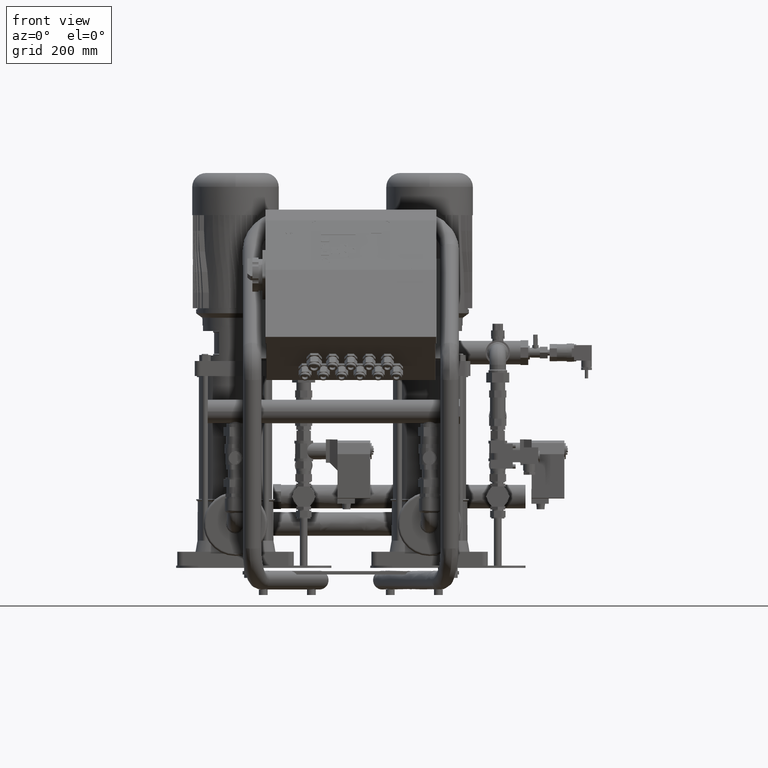
[diagram: clean part render]
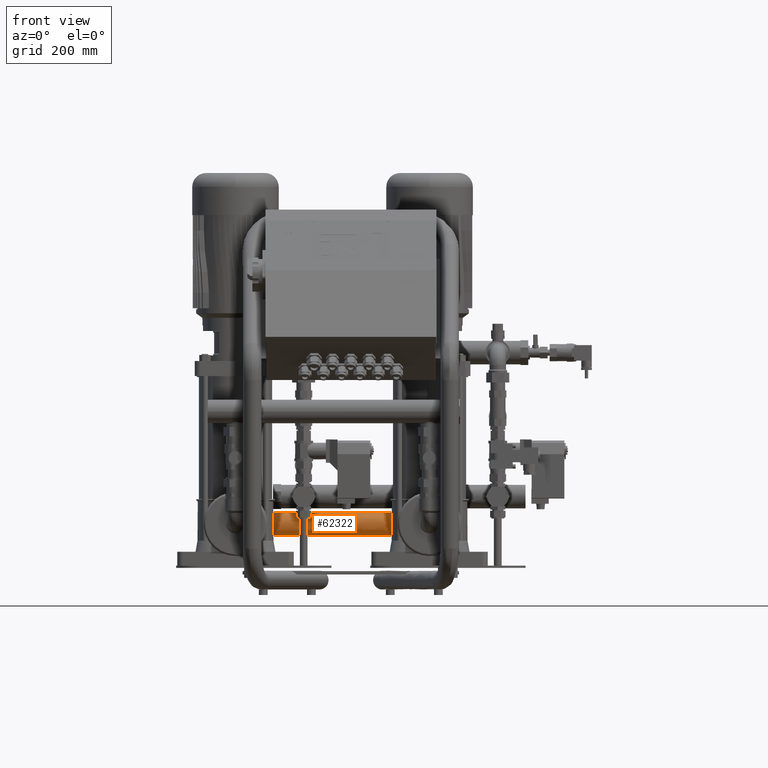
[diagram: same view with one face highlighted and labeled with its STEP entity id]
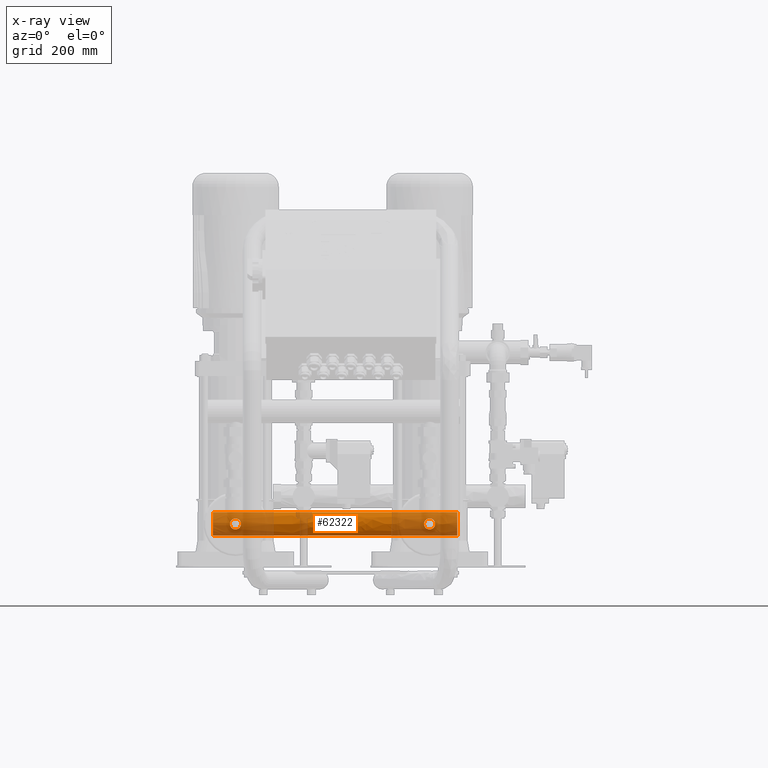
[diagram: x-ray of the same camera — body ghosted, the highlighted face saturated]
A machine part, front view. The second image highlights one B-rep face of the part: STEP entity #62322.
The next image is the same camera in x-ray: the body ghosted, the highlighted face saturated — about 54% of this face is hidden behind the body in this view.
In plain terms, the highlighted face is a freeform B-spline surface patch.
Its self-contained STEP definition (entity closure, byte-faithful):
#60997=CARTESIAN_POINT('',(192.000000000000030,302.000000000000060,149.199999999999990));
#60998=VERTEX_POINT('',#60997);
#60999=CARTESIAN_POINT('',(-248.999999999999970,302.000000000000060,149.199999999999990));
#61000=VERTEX_POINT('',#60999);
#61001=CARTESIAN_POINT('',(192.000000000000030,302.000000000000060,149.199999999999990));
#61002=DIRECTION('',(-1.0,0.0,0.0));
#61003=VECTOR('',#61002,441.0);
#61004=LINE('',#61001,#61003);
#61005=EDGE_CURVE('',#60998,#61000,#61004,.T.);
#61007=CARTESIAN_POINT('',(192.000000000000030,302.000000000000060,106.800000000000010));
#61008=VERTEX_POINT('',#61007);
#61016=CARTESIAN_POINT('',(-248.999999999999970,302.000000000000060,106.800000000000010));
#61017=VERTEX_POINT('',#61016);
#61018=CARTESIAN_POINT('',(192.000000000000030,302.000000000000060,106.800000000000010));
#61019=DIRECTION('',(-1.0,0.0,0.0));
#61020=VECTOR('',#61019,441.0);
#61021=LINE('',#61018,#61020);
#61022=EDGE_CURVE('',#61008,#61017,#61021,.T.);
#61062=CARTESIAN_POINT('',(142.0,283.306685687123380,118.0));
#61063=VERTEX_POINT('',#61062);
#61079=CARTESIAN_POINT('',(142.000000000000140,283.306685687123380,138.0));
#61080=VERTEX_POINT('',#61079);
#61087=CARTESIAN_POINT('',(142.000000000000030,283.306685687123380,138.0));
#61088=CARTESIAN_POINT('',(140.720560186007700,283.306685687123380,138.0));
#61089=CARTESIAN_POINT('',(139.373084570083650,283.161358473429910,137.740136846398630));
#61090=CARTESIAN_POINT('',(136.917228477885170,282.665361959589750,136.714150652767440));
#61091=CARTESIAN_POINT('',(135.806584471090930,282.324519280027180,135.948720094821850));
#61092=CARTESIAN_POINT('',(134.053117178519220,281.704140556238090,134.195252802250140));
#61093=CARTESIAN_POINT('',(133.286323823155130,281.380686168950040,133.083964854864400));
#61094=CARTESIAN_POINT('',(132.259254125880060,280.926080648252480,130.625400019420970));
#61095=CARTESIAN_POINT('',(132.000000000000030,280.800000000000070,129.276761440441250));
#61096=CARTESIAN_POINT('',(132.000000000000030,280.800000000000070,126.723238559558750));
#61097=CARTESIAN_POINT('',(132.259254125880060,280.926080648252480,125.374599980579030));
#61098=CARTESIAN_POINT('',(133.286323823155130,281.380686168950040,122.916035145135600));
#61099=CARTESIAN_POINT('',(134.053117178519220,281.704140556238090,121.804747197749860));
#61100=CARTESIAN_POINT('',(135.806584471090930,282.324519280027180,120.051279905178180));
#61101=CARTESIAN_POINT('',(136.917228477885060,282.665361959589750,119.285849347232610));
#61102=CARTESIAN_POINT('',(139.373084570083530,283.161358473429910,118.259863153601460));
#61103=CARTESIAN_POINT('',(140.720560186007700,283.306685687123380,118.0));
#61104=CARTESIAN_POINT('',(142.0,283.306685687123380,118.0));
#61105=B_SPLINE_CURVE_WITH_KNOTS('',3,(#61087,#61088,#61089,#61090,#61091,#61092,#61093,#61094,#61095,#61096,#61097,#61098,#61099,#61100,#61101,#61102,#61103,#61104),.UNSPECIFIED.,.F.,.U.,(4,2,2,2,2,2,2,2,4),(0.0,0.383831944197687,0.767663888395374,1.150692320527747,1.533720752660120,1.916749184792493,2.299777616924865,2.683609561122553,3.067441505320240),.UNSPECIFIED.);
#61106=EDGE_CURVE('',#61080,#61063,#61105,.T.);
#61139=CARTESIAN_POINT('',(-207.999999999999940,283.306685687123380,118.0));
#61140=VERTEX_POINT('',#61139);
#61156=CARTESIAN_POINT('',(-207.999999999999970,283.306685687123380,138.0));
#61157=VERTEX_POINT('',#61156);
#61164=CARTESIAN_POINT('',(-207.999999999999970,283.306685687123380,138.0));
#61165=CARTESIAN_POINT('',(-209.279439813992240,283.306685687123380,138.0));
#61166=CARTESIAN_POINT('',(-210.626915429916350,283.161358473429970,137.740136846398630));
#61167=CARTESIAN_POINT('',(-213.082771522114880,282.665361959589750,136.714150652767440));
#61168=CARTESIAN_POINT('',(-214.193415528909070,282.324519280027180,135.948720094821850));
#61169=CARTESIAN_POINT('',(-215.946882821480780,281.704140556238090,134.195252802250140));
#61170=CARTESIAN_POINT('',(-216.713676176844870,281.380686168950040,133.083964854864400));
#61171=CARTESIAN_POINT('',(-217.740745874119880,280.926080648252480,130.625400019420970));
#61172=CARTESIAN_POINT('',(-217.999999999999970,280.800000000000070,129.276761440441250));
#61173=CARTESIAN_POINT('',(-217.999999999999970,280.800000000000070,126.723238559558810));
#61174=CARTESIAN_POINT('',(-217.740745874119880,280.926080648252480,125.374599980579090));
#61175=CARTESIAN_POINT('',(-216.713676176844870,281.380686168950040,122.916035145135620));
#61176=CARTESIAN_POINT('',(-215.946882821480780,281.704140556238090,121.804747197749890));
#61177=CARTESIAN_POINT('',(-214.193415528909070,282.324519280027180,120.051279905178180));
#61178=CARTESIAN_POINT('',(-213.082771522114880,282.665361959589750,119.285849347232580));
#61179=CARTESIAN_POINT('',(-210.626915429916350,283.161358473429970,118.259863153601400));
#61180=CARTESIAN_POINT('',(-209.279439813992240,283.306685687123380,118.0));
#61181=CARTESIAN_POINT('',(-207.999999999999940,283.306685687123380,118.0));
#61182=B_SPLINE_CURVE_WITH_KNOTS('',3,(#61164,#61165,#61166,#61167,#61168,#61169,#61170,#61171,#61172,#61173,#61174,#61175,#61176,#61177,#61178,#61179,#61180,#61181),.UNSPECIFIED.,.F.,.U.,(4,2,2,2,2,2,2,2,4),(0.0,0.383831944197688,0.767663888395376,1.150692320527748,1.533720752660121,1.916749184792493,2.299777616924865,2.683609561122553,3.067441505320241),.UNSPECIFIED.);
#61183=EDGE_CURVE('',#61157,#61140,#61182,.T.);
#61907=CARTESIAN_POINT('',(-207.999999999999940,283.306685687123380,118.0));
#61908=CARTESIAN_POINT('',(-206.720560186007650,283.306685687123380,118.0));
#61909=CARTESIAN_POINT('',(-205.373084570083590,283.161358473429970,118.259863153601400));
#61910=CARTESIAN_POINT('',(-202.917228477885000,282.665361959589750,119.285849347232580));
#61911=CARTESIAN_POINT('',(-201.806584471090820,282.324519280027180,120.051279905178180));
#61912=CARTESIAN_POINT('',(-200.053117178519160,281.704140556238090,121.804747197749890));
#61913=CARTESIAN_POINT('',(-199.286323823155020,281.380686168950040,122.916035145135620));
#61914=CARTESIAN_POINT('',(-198.259254125880010,280.926080648252480,125.374599980579090));
#61915=CARTESIAN_POINT('',(-197.999999999999970,280.800000000000070,126.723238559558810));
#61916=CARTESIAN_POINT('',(-197.999999999999970,280.800000000000070,129.276761440441250));
#61917=CARTESIAN_POINT('',(-198.259254125880010,280.926080648252480,130.625400019420970));
#61918=CARTESIAN_POINT('',(-199.286323823155020,281.380686168950040,133.083964854864400));
#61919=CARTESIAN_POINT('',(-200.053117178519160,281.704140556238090,134.195252802250140));
#61920=CARTESIAN_POINT('',(-201.806584471090820,282.324519280027180,135.948720094821850));
#61921=CARTESIAN_POINT('',(-202.917228477885000,282.665361959589750,136.714150652767440));
#61922=CARTESIAN_POINT('',(-205.373084570083530,283.161358473429970,137.740136846398630));
#61923=CARTESIAN_POINT('',(-206.720560186007650,283.306685687123380,138.0));
#61924=CARTESIAN_POINT('',(-207.999999999999970,283.306685687123380,138.0));
#61925=B_SPLINE_CURVE_WITH_KNOTS('',3,(#61907,#61908,#61909,#61910,#61911,#61912,#61913,#61914,#61915,#61916,#61917,#61918,#61919,#61920,#61921,#61922,#61923,#61924),.UNSPECIFIED.,.F.,.U.,(4,2,2,2,2,2,2,2,4),(3.067441505320241,3.451273449517929,3.835105393715617,4.218133825847990,4.601162257980362,4.984190690112735,5.367219122245107,5.751051066442795,6.134883010640484),.UNSPECIFIED.);
#61926=EDGE_CURVE('',#61140,#61157,#61925,.T.);
#61960=CARTESIAN_POINT('',(142.0,283.306685687123380,118.0));
#61961=CARTESIAN_POINT('',(143.279439813992300,283.306685687123380,118.0));
#61962=CARTESIAN_POINT('',(144.626915429916350,283.161358473429970,118.259863153601400));
#61963=CARTESIAN_POINT('',(147.082771522114940,282.665361959589750,119.285849347232580));
#61964=CARTESIAN_POINT('',(148.193415528909130,282.324519280027180,120.051279905178180));
#61965=CARTESIAN_POINT('',(149.946882821480840,281.704140556238090,121.804747197749860));
#61966=CARTESIAN_POINT('',(150.713676176844980,281.380686168950040,122.916035145135600));
#61967=CARTESIAN_POINT('',(151.740745874119990,280.926080648252480,125.374599980579030));
#61968=CARTESIAN_POINT('',(152.000000000000030,280.800000000000070,126.723238559558750));
#61969=CARTESIAN_POINT('',(152.000000000000030,280.800000000000070,129.276761440441250));
#61970=CARTESIAN_POINT('',(151.740745874119990,280.926080648252480,130.625400019420970));
#61971=CARTESIAN_POINT('',(150.713676176844980,281.380686168950040,133.083964854864400));
#61972=CARTESIAN_POINT('',(149.946882821480840,281.704140556238090,134.195252802250140));
#61973=CARTESIAN_POINT('',(148.193415528909130,282.324519280027180,135.948720094821850));
#61974=CARTESIAN_POINT('',(147.082771522114880,282.665361959589750,136.714150652767440));
#61975=CARTESIAN_POINT('',(144.626915429916410,283.161358473429910,137.740136846398630));
#61976=CARTESIAN_POINT('',(143.279439813992350,283.306685687123380,138.0));
#61977=CARTESIAN_POINT('',(142.000000000000030,283.306685687123380,138.0));
#61978=B_SPLINE_CURVE_WITH_KNOTS('',3,(#61960,#61961,#61962,#61963,#61964,#61965,#61966,#61967,#61968,#61969,#61970,#61971,#61972,#61973,#61974,#61975,#61976,#61977),.UNSPECIFIED.,.F.,.U.,(4,2,2,2,2,2,2,2,4),(3.067441505320240,3.451273449517927,3.835105393715614,4.218133825847986,4.601162257980359,4.984190690112732,5.367219122245105,5.751051066442792,6.134883010640479),.UNSPECIFIED.);
#61979=EDGE_CURVE('',#61063,#61080,#61978,.T.);
#62058=CARTESIAN_POINT('',(-248.999999999999970,302.000000000000060,128.0));
#62059=DIRECTION('',(1.0,0.0,0.0));
#62060=DIRECTION('',(0.0,0.0,1.0));
#62061=AXIS2_PLACEMENT_3D('',#62058,#62059,#62060);
#62062=CIRCLE('',#62061,21.200000000000003);
#62063=EDGE_CURVE('',#61000,#61017,#62062,.T.);
#62276=CARTESIAN_POINT('',(-248.999999999999970,302.000000000000060,106.800000000000000));
#62277=CARTESIAN_POINT('',(192.000000000000030,302.000000000000060,106.800000000000000));
#62278=CARTESIAN_POINT('',(-248.999999999999970,280.800000000000070,106.800000000000000));
#62279=CARTESIAN_POINT('',(192.0,280.800000000000070,106.800000000000000));
#62280=CARTESIAN_POINT('',(-248.999999999999970,280.800000000000070,128.0));
#62281=CARTESIAN_POINT('',(192.000000000000030,280.800000000000070,128.0));
#62282=CARTESIAN_POINT('',(-248.999999999999970,280.800000000000070,149.199999999999990));
#62283=CARTESIAN_POINT('',(192.0,280.800000000000070,149.199999999999990));
#62284=CARTESIAN_POINT('',(-248.999999999999970,302.000000000000060,149.199999999999990));
#62285=CARTESIAN_POINT('',(192.000000000000030,302.000000000000060,149.199999999999990));
#62286=CARTESIAN_POINT('',(-248.999999999999970,323.200000000000050,149.199999999999990));
#62287=CARTESIAN_POINT('',(192.0,323.200000000000050,149.199999999999990));
#62288=CARTESIAN_POINT('',(-248.999999999999970,323.200000000000050,128.0));
#62289=CARTESIAN_POINT('',(192.000000000000030,323.200000000000050,128.0));
#62290=CARTESIAN_POINT('',(-248.999999999999970,323.200000000000050,106.800000000000000));
#62291=CARTESIAN_POINT('',(192.0,323.200000000000050,106.800000000000000));
#62292=CARTESIAN_POINT('',(-248.999999999999970,302.000000000000060,106.800000000000000));
#62293=CARTESIAN_POINT('',(192.000000000000030,302.000000000000060,106.800000000000000));
#62301=(BOUNDED_SURFACE()B_SPLINE_SURFACE(1,2,((#62276,#62278,#62280,#62282,#62284,#62286,#62288,#62290,#62292),(#62277,#62279,#62281,#62283,#62285,#62287,#62289,#62291,#62293)),.UNSPECIFIED.,.F.,.T.,.U.)B_SPLINE_SURFACE_WITH_KNOTS((2,2),(3,2,2,2,3),(0.0,20.801886792452827),(0.0,33.300882128051811,66.601764256103621,99.902646384155432,133.203528512207240),.UNSPECIFIED.)GEOMETRIC_REPRESENTATION_ITEM()RATIONAL_B_SPLINE_SURFACE(((1.0,0.707106781186548,1.0,0.707106781186548,1.0,0.707106781186548,1.0,0.707106781186548,1.0),(1.0,0.707106781186548,1.0,0.707106781186548,1.0,0.707106781186548,1.0,0.707106781186548,1.0)))REPRESENTATION_ITEM('')SURFACE());
#62302=ORIENTED_EDGE('',*,*,#61005,.T.);
#62303=ORIENTED_EDGE('',*,*,#62063,.T.);
#62304=ORIENTED_EDGE('',*,*,#61022,.F.);
#62305=CARTESIAN_POINT('',(192.000000000000030,302.000000000000060,128.0));
#62306=DIRECTION('',(1.0,0.0,0.0));
#62307=DIRECTION('',(0.0,0.0,1.0));
#62308=AXIS2_PLACEMENT_3D('',#62305,#62306,#62307);
#62309=CIRCLE('',#62308,21.200000000000003);
#62310=EDGE_CURVE('',#60998,#61008,#62309,.T.);
#62311=ORIENTED_EDGE('',*,*,#62310,.F.);
#62312=EDGE_LOOP('',(#62302,#62303,#62304,#62311));
#62313=FACE_OUTER_BOUND('',#62312,.T.);
#62314=ORIENTED_EDGE('',*,*,#61183,.F.);
#62315=ORIENTED_EDGE('',*,*,#61926,.F.);
#62316=EDGE_LOOP('',(#62314,#62315));
#62317=FACE_BOUND('',#62316,.T.);
#62318=ORIENTED_EDGE('',*,*,#61106,.F.);
#62319=ORIENTED_EDGE('',*,*,#61979,.F.);
#62320=EDGE_LOOP('',(#62318,#62319));
#62321=FACE_BOUND('',#62320,.T.);
#62322=ADVANCED_FACE('',(#62313,#62317,#62321),#62301,.T.);